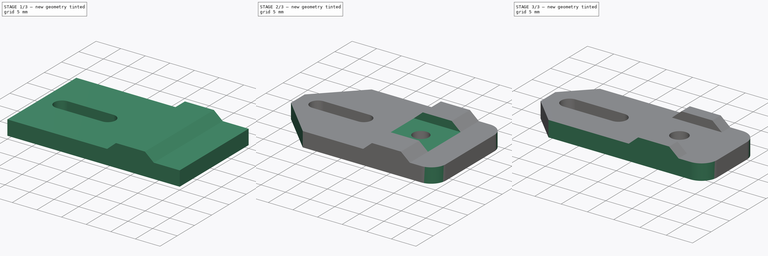
[diagram: build sequence overview — one tinted view per stage of 3, left to right]
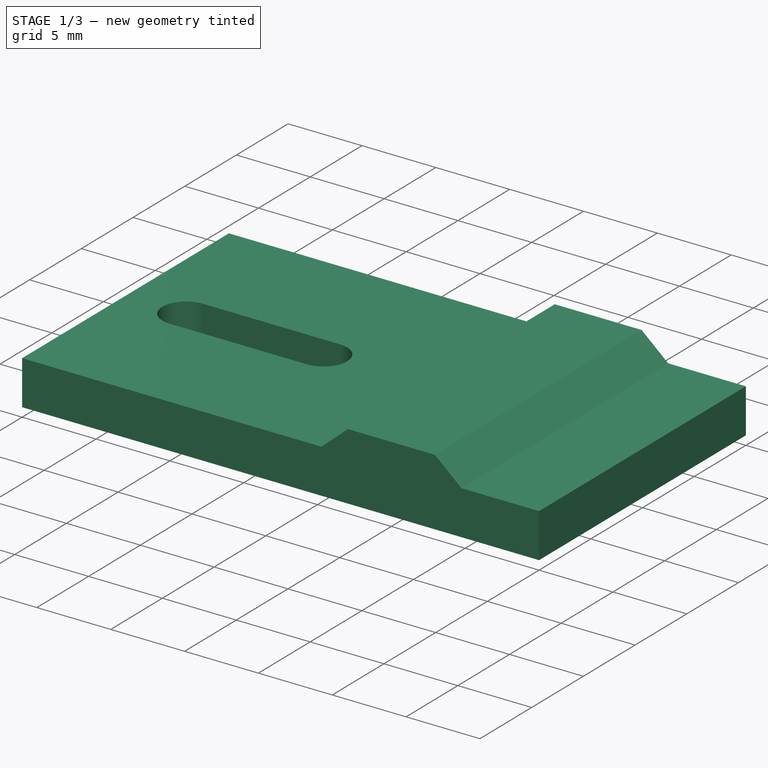
[diagram: stage 1 of 3 — iso view after this stage's code; geometry added in this stage tinted green]
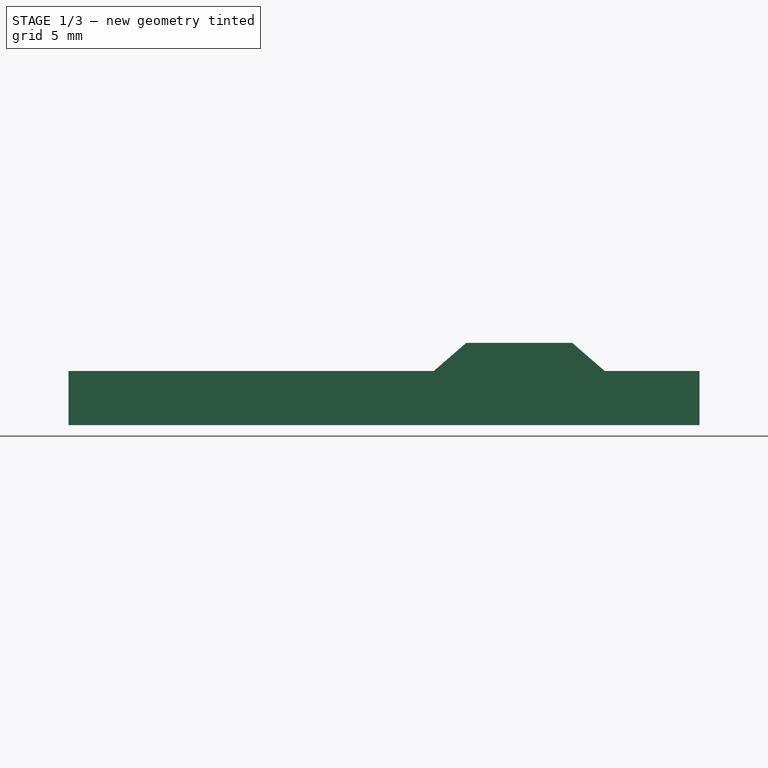
[diagram: stage 1 of 3 — front view after this stage's code; geometry added in this stage tinted green]
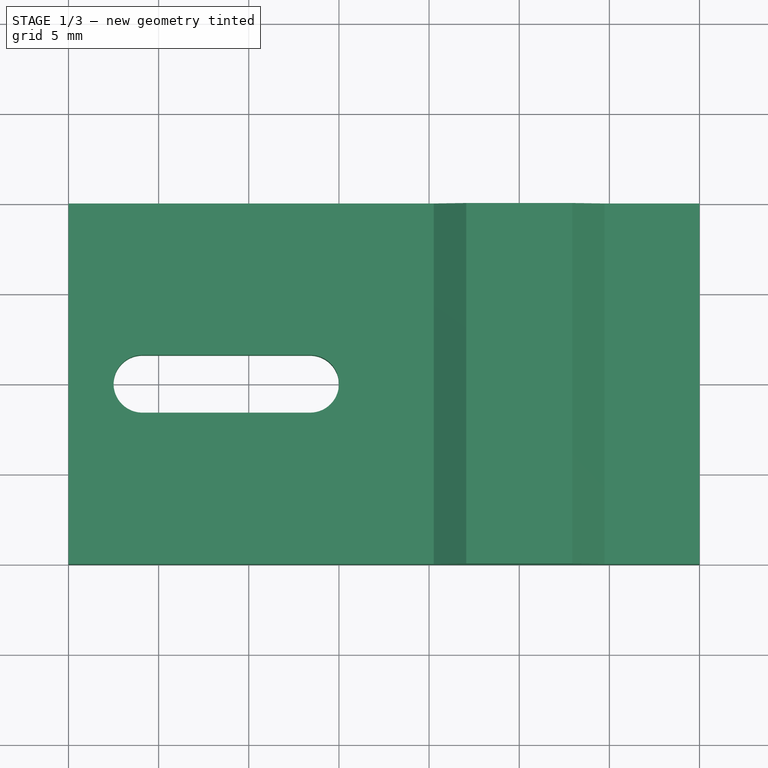
[diagram: stage 1 of 3 — top view after this stage's code; geometry added in this stage tinted green]
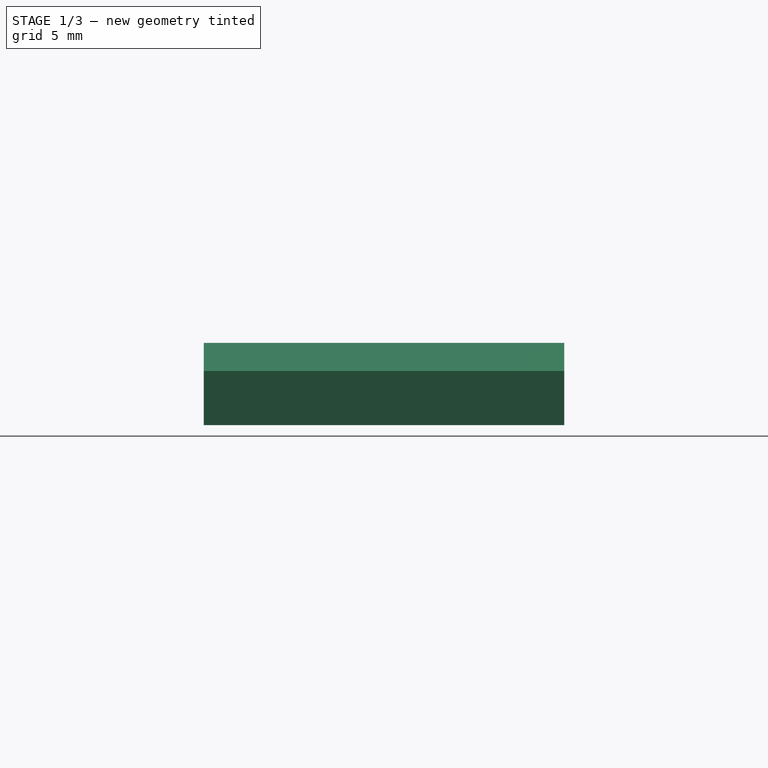
[diagram: stage 1 of 3 — right view after this stage's code; geometry added in this stage tinted green]
FCSTD DOCUMENT  (FreeCAD 0.21R33771 (Git))
Label: suporte-lidar-C
License: All rights reserved
LicenseURL: http://en.wikipedia.org/wiki/All_rights_reserved
objects: Sketcher::SketchObject×4, PartDesign::Pad×2, PartDesign::Pocket×2, PartDesign::Fillet×2, PartDesign::Chamfer×1, PartDesign::Body×1
note: 19 computed .brp shape members not serialized (recipe doc carries the construction recipe); baked Part::Feature solids carry a one-line shape summary decoded from their .brp

FEATURE [Sketcher::SketchObject] Sketch
  FullyConstrained = true
  MapMode = 5
  Support = -> [XY_Plane]
  sketch-geometry (18):
    g0: LineSegment StartX=-10 StartY=10 StartZ=0 EndX=10 EndY=10 EndZ=0
    g1: LineSegment StartX=10 StartY=10 StartZ=0 EndX=10 EndY=-10 EndZ=0
    g2: LineSegment StartX=10 StartY=-10 StartZ=0 EndX=-10 EndY=-10 EndZ=0
    g3: LineSegment StartX=-10 StartY=-10 StartZ=0 EndX=-10 EndY=10 EndZ=0
    g4: Circle CenterX=0 CenterY=0 CenterZ=0 NormalX=0 NormalY=0 NormalZ=1 AngleXU=0 Radius=10
    g5: ArcOfCircle CenterX=-10 CenterY=-4e-16 CenterZ=0 NormalX=0 NormalY=0 NormalZ=1 AngleXU=0 Radius=10 StartAngle=1.5708 EndAngle=4.71239
    g6: Circle CenterX=-15 CenterY=0 CenterZ=0 NormalX=0 NormalY=0 NormalZ=1 AngleXU=0 Radius=3.16
    g7: LineSegment StartX=-15 StartY=0 StartZ=0 EndX=-20 EndY=0 EndZ=0
    g8: LineSegment StartX=-15 StartY=0 StartZ=0 EndX=-10 EndY=0 EndZ=0
    g9: LineSegment StartX=-10 StartY=10 StartZ=0 EndX=-25 EndY=10 EndZ=0
    g10: LineSegment StartX=-25 StartY=10 StartZ=0 EndX=-25 EndY=-10 EndZ=0
    g11: LineSegment StartX=-25 StartY=-10 StartZ=0 EndX=-10 EndY=-10 EndZ=0
    g12: LineSegment StartX=-10 StartY=-10 StartZ=0 EndX=-10 EndY=10 EndZ=0
    g13: ArcOfCircle CenterX=-20.9 CenterY=0 CenterZ=0 NormalX=0 NormalY=0 NormalZ=1 AngleXU=0 Radius=1.6 StartAngle=1.5708 EndAngle=4.71239
    g14: ArcOfCircle CenterX=-11.6 CenterY=0 CenterZ=0 NormalX=0 NormalY=0 NormalZ=1 AngleXU=0 Radius=1.6 StartAngle=4.71239 EndAngle=7.85398
    g15: LineSegment StartX=-20.9 StartY=-1.6 StartZ=0 EndX=-11.6 EndY=-1.6 EndZ=0
    g16: LineSegment StartX=-11.6 StartY=1.6 StartZ=0 EndX=-20.9 EndY=1.6 EndZ=0
    g17: Circle CenterX=0 CenterY=0 CenterZ=0 NormalX=0 NormalY=0 NormalZ=1 AngleXU=0 Radius=1.6
  constraints (47):
    c: Coincident(g0,g1)
    c: Coincident(g1,g2)
    c: Coincident(g2,g3)
    c: Coincident(g3,g0)
    c: Horizontal(g0)
    c: Horizontal(g2)
    c: Vertical(g1)
    c: Vertical(g3)
    c: Coincident(g4,g-1)
    c: Tangent(g4,g3)
    c: Tangent(g4,g0)
    c: Tangent(g1,g4)
    c: Tangent(g2,g4)
    c: Coincident(g5,g2)
    c: Tangent(g5,g0) = 1.5708
    c: DistanceY(g1,g1) = 20
    c: PointOnObject(g6,g-1)
    c: Radius(g6) = 3.16
    c: Coincident(g7,g6)
    c: PointOnObject(g8,g3)
    c: PointOnObject(g8,g-1)
    c: PointOnObject(g7,g5)
    c: PointOnObject(g7,g-1)
    c: Equal(g7,g8)
    c: Coincident(g6,g8)
    c: Coincident(g9,g10)
    c: Coincident(g10,g11)
    c: Coincident(g11,g12)
    c: Coincident(g12,g9)
    c: Horizontal(g9)
    c: Horizontal(g11)
    c: Vertical(g10)
    c: Coincident(g9,g0)
    c: Coincident(g11,g2)
    c: DistanceX(g9,g9) = 15
    c: Tangent(g13,g15) = -1.5708
    c: Tangent(g15,g14) = -1.5708
    c: Tangent(g14,g16) = -1.5708
    c: Tangent(g16,g13) = -1.5708
    c: Equal(g13,g14)
    c: PointOnObject(g13,g-1)
    c: Radius(g13) = 1.6
    c: Tangent(g14,g3)
    c: PointOnObject(g14,g8)
    c: DistanceX(g9,g13) = 4.1
    c: Coincident(g17,g4)
    c: Equal(g17,g14)
FEATURE [PartDesign::Pad] Pad
  Direction = (0,0,1)
  Length = 3
  Length2 = 100
  Profile = -> Sketch
  ReferenceAxis = -> Sketch [N_Axis]
  Type = 0
FEATURE [Sketcher::SketchObject] Sketch001
  ExternalGeometry = -> [Pad]
  FullyConstrained = true
  MapMode = 5
  Placement = pos=(0,-10,0) rot=(1,0,0;1.5708rad)
  Support = -> [Pad]
  sketch-geometry (4):
    g0: LineSegment StartX=-4.74 StartY=3 StartZ=0 EndX=4.74 EndY=3 EndZ=0
    g1: LineSegment StartX=4.74 StartY=3 StartZ=0 EndX=2.94 EndY=4.56 EndZ=0
    g2: LineSegment StartX=2.94 StartY=4.56 StartZ=0 EndX=-2.94 EndY=4.56 EndZ=0
    g3: LineSegment StartX=-2.94 StartY=4.56 StartZ=0 EndX=-4.74 EndY=3 EndZ=0
  constraints (10):
    c: Coincident(g0,g1)
    c: Coincident(g1,g2)
    c: Coincident(g2,g3)
    c: Coincident(g3,g0)
    c: Symmetric(g2,g1,g-2)
    c: Symmetric(g0,g0,g-2)
    c: PointOnObject(g0,g-3)
    c: DistanceY(g0,g2) = 1.56
    c: DistanceX(g2,g2) = 5.88
    c: DistanceX(g0,g0) = 9.48
FEATURE [PartDesign::Pad] Pad001
  BaseFeature = -> Pad
  Direction = (0,-1,2e-16)
  Length = 10
  Length2 = 10
  Profile = -> Sketch001
  ReferenceAxis = -> Sketch001 [N_Axis]
  Type = 3
  UpToFace = -> Pad [Face1]
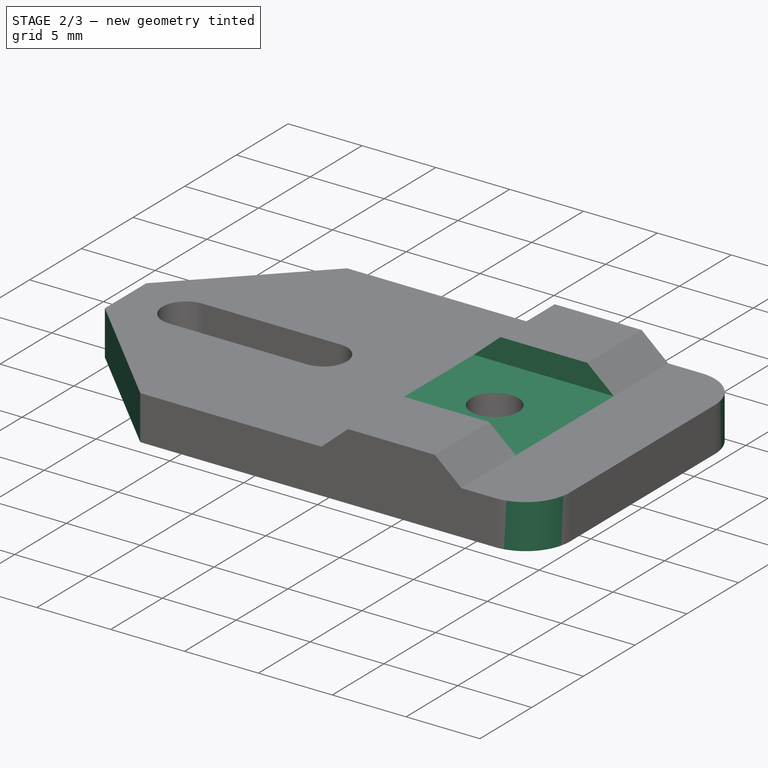
[diagram: stage 2 of 3 — iso view after this stage's code; geometry added in this stage tinted green]
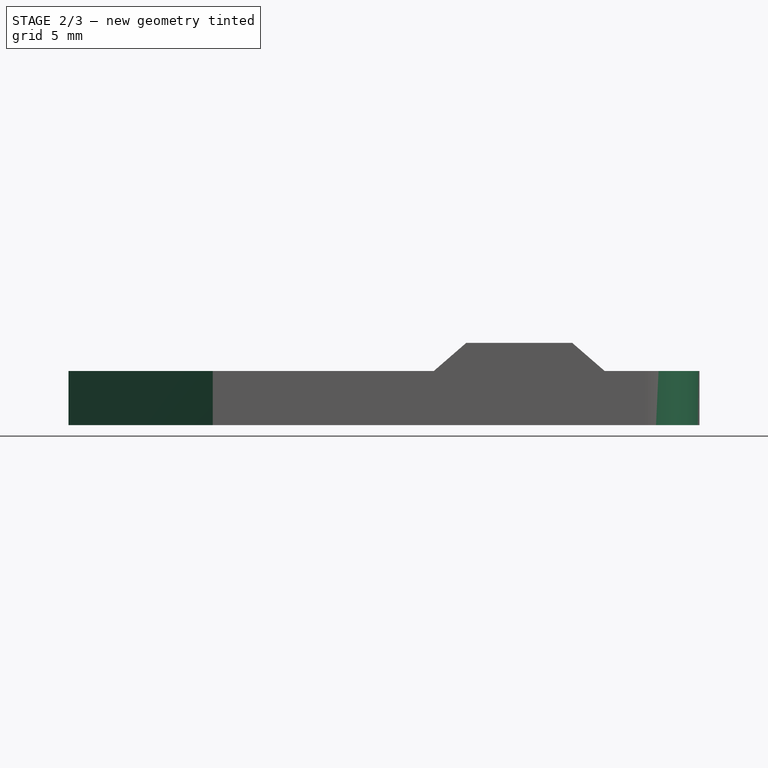
[diagram: stage 2 of 3 — front view after this stage's code; geometry added in this stage tinted green]
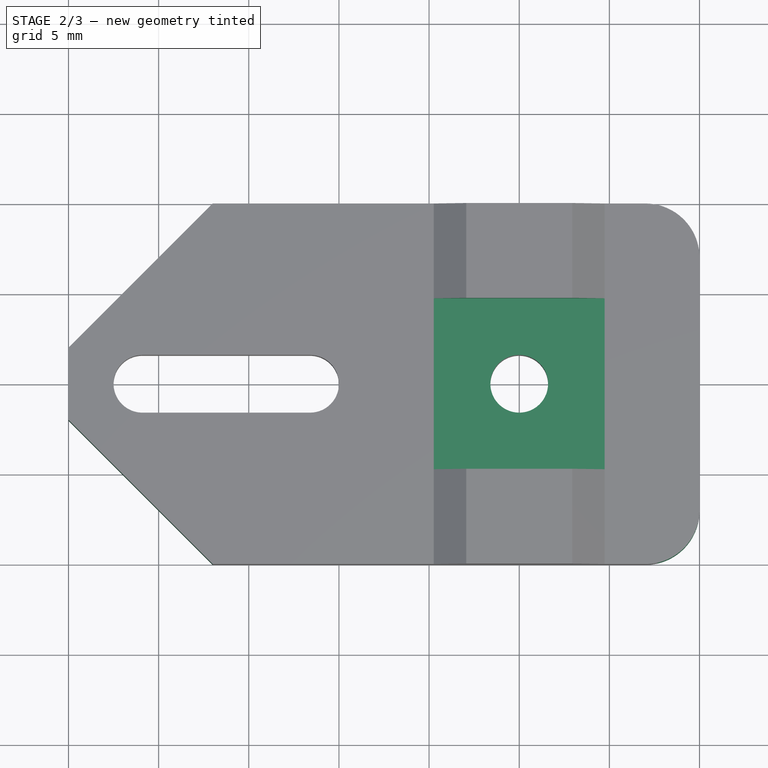
[diagram: stage 2 of 3 — top view after this stage's code; geometry added in this stage tinted green]
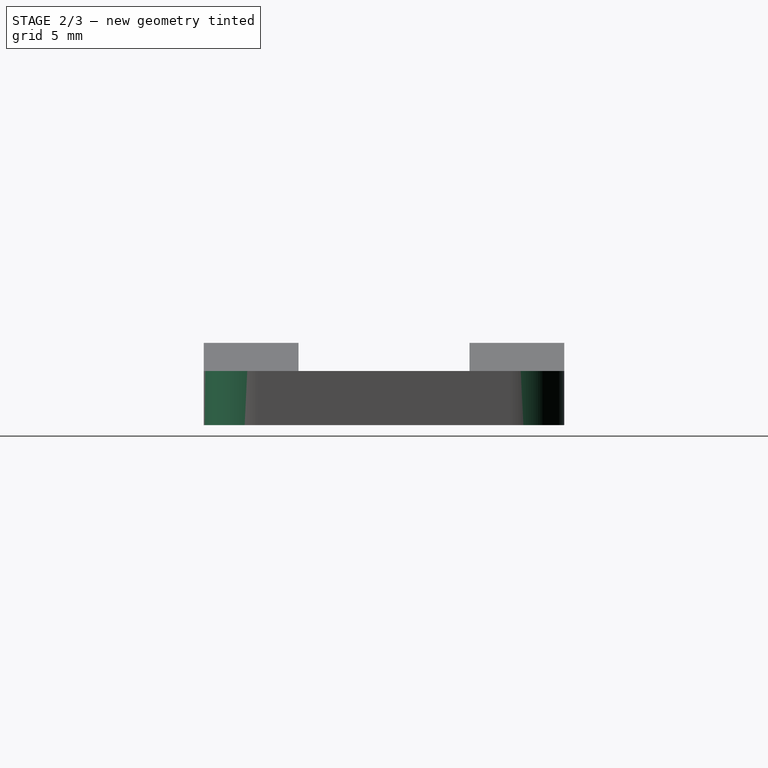
[diagram: stage 2 of 3 — right view after this stage's code; geometry added in this stage tinted green]
FEATURE [Sketcher::SketchObject] Sketch002
  ExternalGeometry = -> [Pad001]
  FullyConstrained = true
  MapMode = 5
  Placement = pos=(0,1e-15,4.56) rot=(0,0,1;0rad)
  Support = -> [Pad001]
  sketch-geometry (5):
    g0: Circle CenterX=0 CenterY=0 CenterZ=0 NormalX=0 NormalY=0 NormalZ=1 AngleXU=0 Radius=4.74
    g1: LineSegment StartX=-4.74 StartY=4.74 StartZ=0 EndX=4.74 EndY=4.74 EndZ=0
    g2: LineSegment StartX=4.74 StartY=4.74 StartZ=0 EndX=4.74 EndY=-4.74 EndZ=0
    g3: LineSegment StartX=4.74 StartY=-4.74 StartZ=0 EndX=-4.74 EndY=-4.74 EndZ=0
    g4: LineSegment StartX=-4.74 StartY=-4.74 StartZ=0 EndX=-4.74 EndY=4.74 EndZ=0
  constraints (14):
    c: Coincident(g0,g-1)
    c: Coincident(g1,g2)
    c: Coincident(g2,g3)
    c: Coincident(g3,g4)
    c: Coincident(g4,g1)
    c: Horizontal(g1)
    c: Horizontal(g3)
    c: Vertical(g2)
    c: Vertical(g4)
    c: Tangent(g1,g0)
    c: Tangent(g4,g0)
    c: Tangent(g2,g0)
    c: Tangent(g3,g0)
    c: PointOnObject(g1,g-3)
FEATURE [PartDesign::Pocket] Pocket
  BaseFeature = -> Pad001
  Direction = (0,-2e-16,-1)
  Length = 0
  Length2 = 5
  Profile = -> Sketch002
  ReferenceAxis = -> Sketch002 [N_Axis]
  Type = 3
  UpToFace = -> Pad001 [Face5]
FEATURE [PartDesign::Chamfer] Chamfer
  Angle = 45
  Base = -> Pocket [Edge7,Edge38]
  BaseFeature = -> Pocket
  ChamferType = 0
  FlipDirection = false
  Size = 8
  Size2 = 1
  SupportTransform = false
  UseAllEdges = false
FEATURE [PartDesign::Fillet] Fillet
  Base = -> Chamfer [Edge19,Edge37]
  BaseFeature = -> Chamfer
  Radius = 3
  SupportTransform = false
  UseAllEdges = false
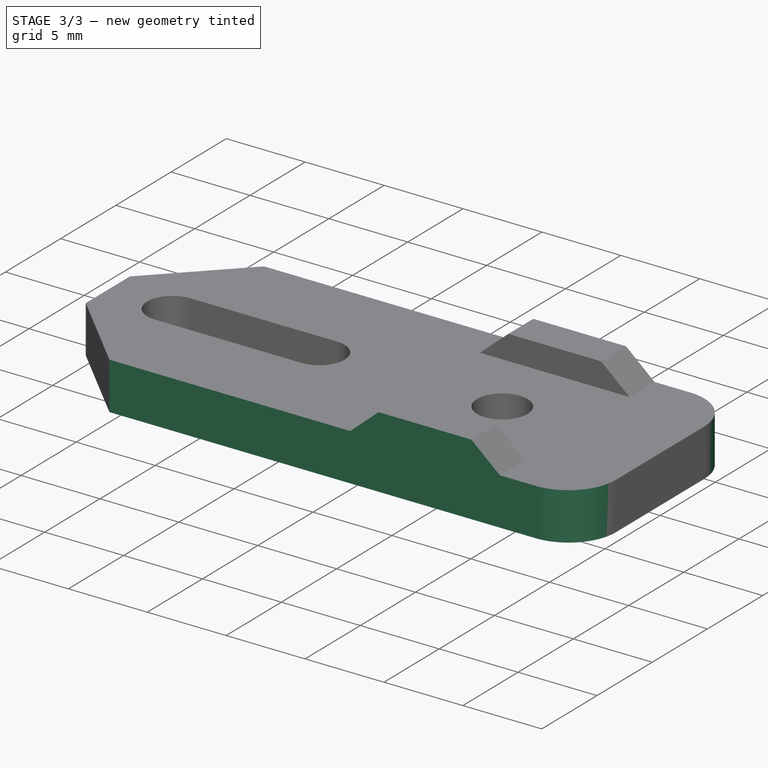
[diagram: stage 3 of 3 — iso view after this stage's code; geometry added in this stage tinted green]
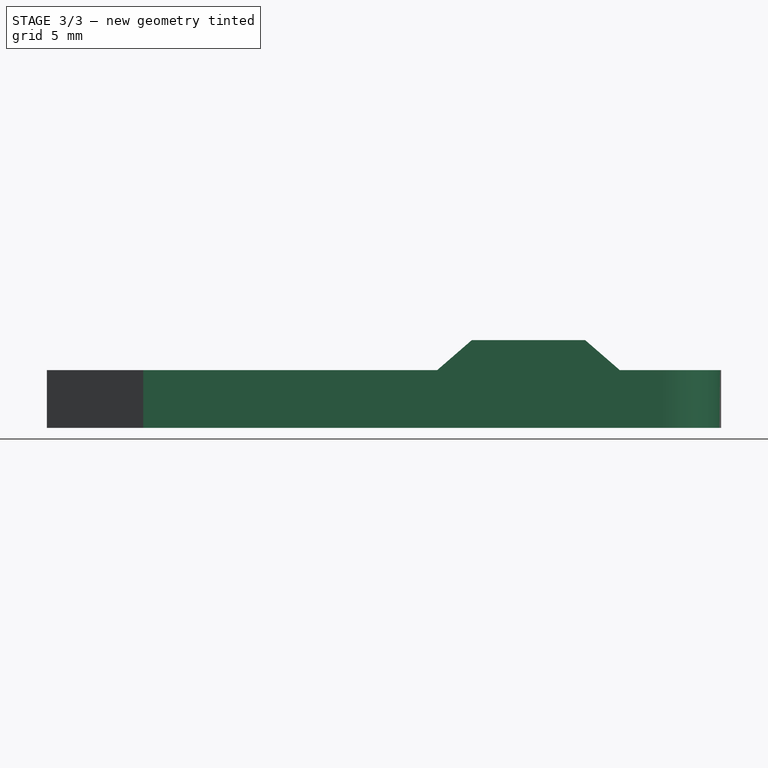
[diagram: stage 3 of 3 — front view after this stage's code; geometry added in this stage tinted green]
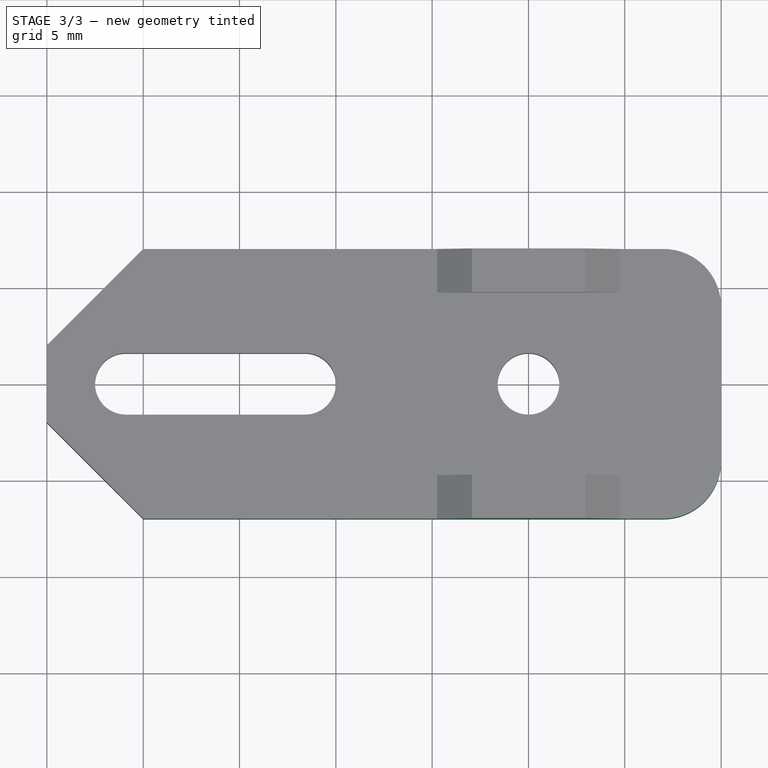
[diagram: stage 3 of 3 — top view after this stage's code; geometry added in this stage tinted green]
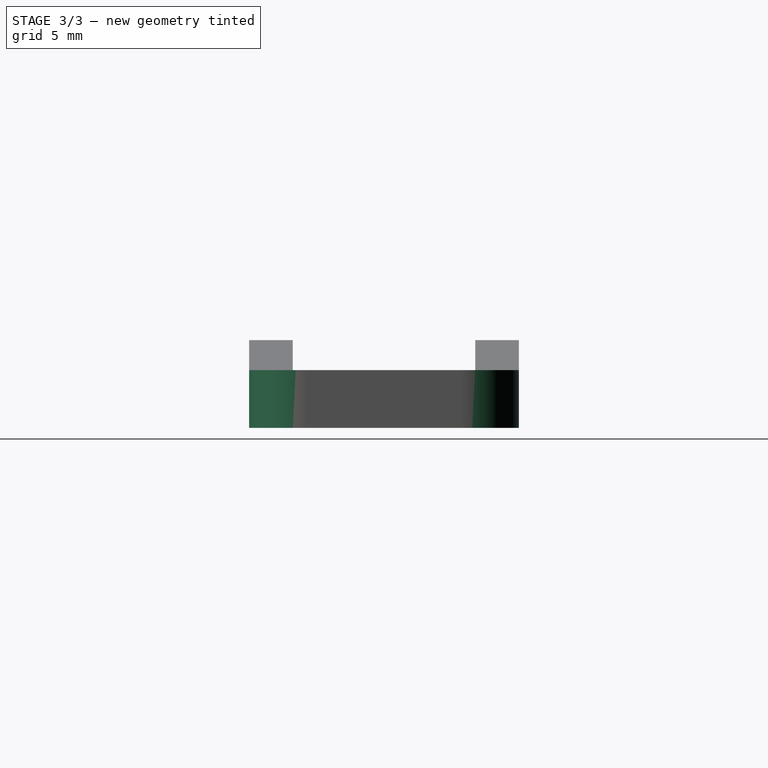
[diagram: stage 3 of 3 — right view after this stage's code; geometry added in this stage tinted green]
FEATURE [Sketcher::SketchObject] Sketch003
  ExternalGeometry = -> [Fillet]
  FullyConstrained = true
  MapMode = 5
  Placement = pos=(0,1e-15,4.56) rot=(0,0,1;0rad)
  Support = -> [Fillet]
  sketch-geometry (8):
    g0: LineSegment StartX=-25 StartY=10 StartZ=0 EndX=10 EndY=10 EndZ=0
    g1: LineSegment StartX=10 StartY=10 StartZ=0 EndX=10 EndY=7 EndZ=0
    g2: LineSegment StartX=10 StartY=7 StartZ=0 EndX=-25 EndY=7 EndZ=0
    g3: LineSegment StartX=-25 StartY=7 StartZ=0 EndX=-25 EndY=10 EndZ=0
    g4: LineSegment StartX=-25 StartY=-7 StartZ=0 EndX=10 EndY=-7 EndZ=0
    g5: LineSegment StartX=10 StartY=-7 StartZ=0 EndX=10 EndY=-10 EndZ=0
    g6: LineSegment StartX=10 StartY=-10 StartZ=0 EndX=-25 EndY=-10 EndZ=0
    g7: LineSegment StartX=-25 StartY=-10 StartZ=0 EndX=-25 EndY=-7 EndZ=0
  constraints (24):
    c: Coincident(g0,g1)
    c: Coincident(g1,g2)
    c: Coincident(g2,g3)
    c: Coincident(g3,g0)
    c: Horizontal(g0)
    c: Horizontal(g2)
    c: Vertical(g1)
    c: Vertical(g3)
    c: Coincident(g4,g5)
    c: Coincident(g5,g6)
    c: Coincident(g6,g7)
    c: Coincident(g7,g4)
    c: Horizontal(g4)
    c: Horizontal(g6)
    c: Vertical(g5)
    c: Vertical(g7)
    c: PointOnObject(g-4,g5)
    c: PointOnObject(g-4,g1)
    c: Vertical(g4,g-3)
    c: Vertical(g-3,g2)
    c: PointOnObject(g-5,g0)
    c: PointOnObject(g-6,g6)
    c: Equal(g3,g7)
    c: DistanceY(g3,g3) = 3
FEATURE [PartDesign::Pocket] Pocket001
  BaseFeature = -> Fillet
  Direction = (0,-2e-16,-1)
  Length = 5
  Length2 = 5
  Profile = -> Sketch003
  ReferenceAxis = -> Sketch003 [N_Axis]
  Type = 1
FEATURE [PartDesign::Fillet] Fillet001
  Base = -> Pocket001 [Edge15,Edge30]
  BaseFeature = -> Pocket001
  Radius = 3
  SupportTransform = false
  UseAllEdges = false
FEATURE [PartDesign::Body] Body
  Group = -> [Sketch,Pad,Sketch001,Pad001,Sketch002,Pocket,Chamfer,Fillet,Sketch003,Pocket001,Fillet001]
  Origin = -> Origin
  Tip = -> Fillet001
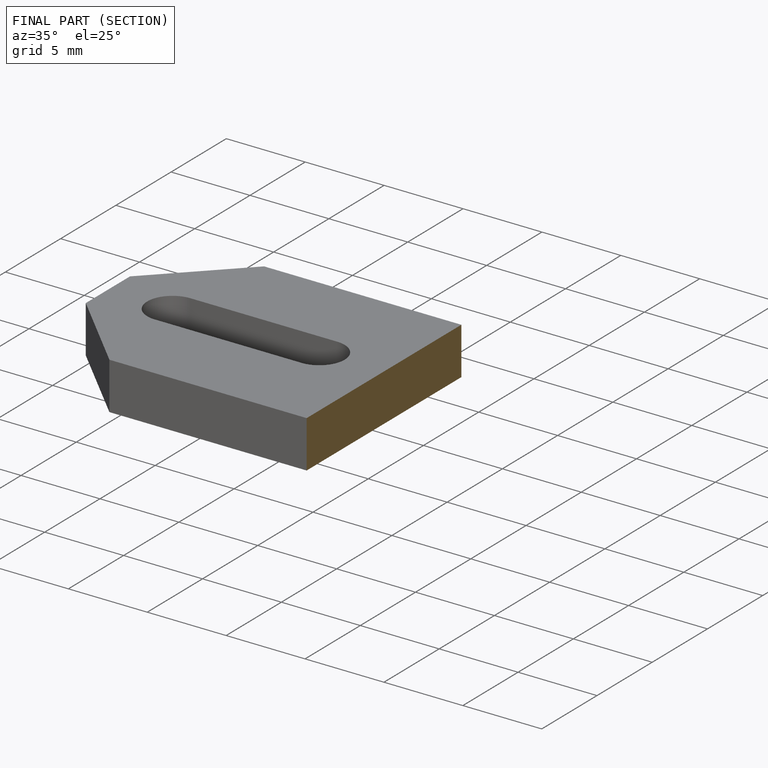
[diagram: finished part — half-section view (interior)]
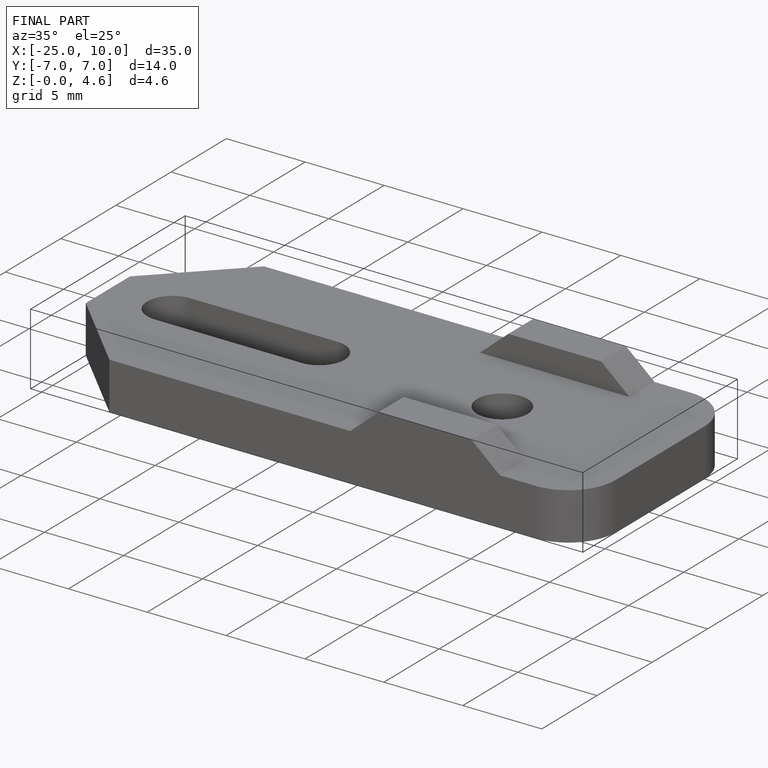
[diagram: finished part — iso view with bounding-box wireframe]
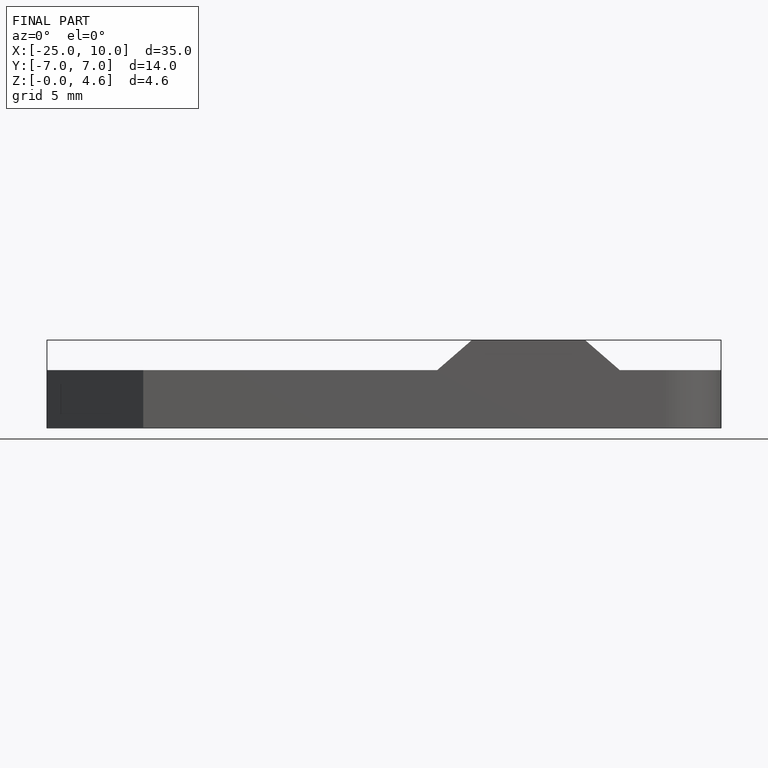
[diagram: finished part — front view with bounding-box wireframe]
